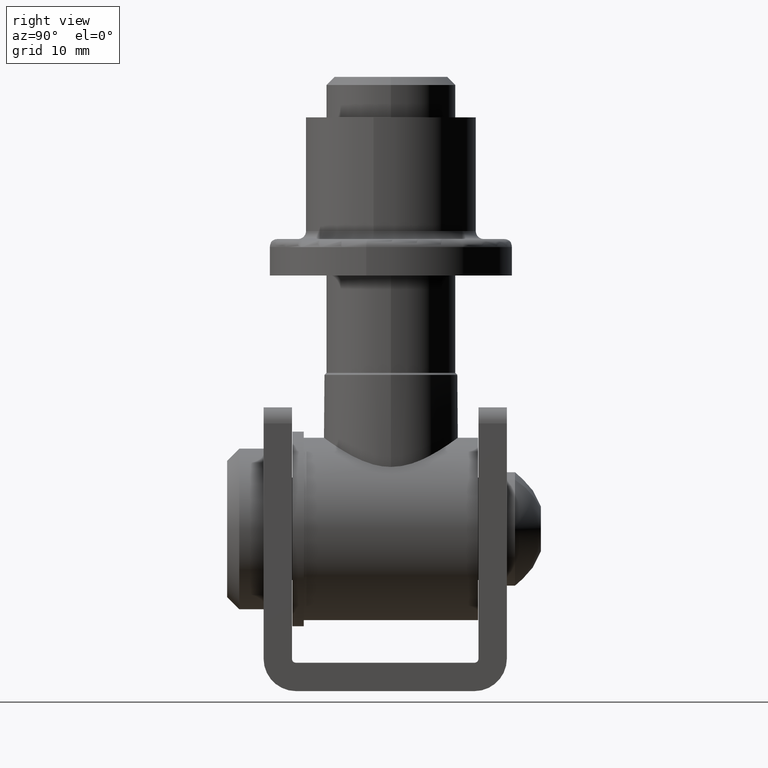
[diagram: clean part render]
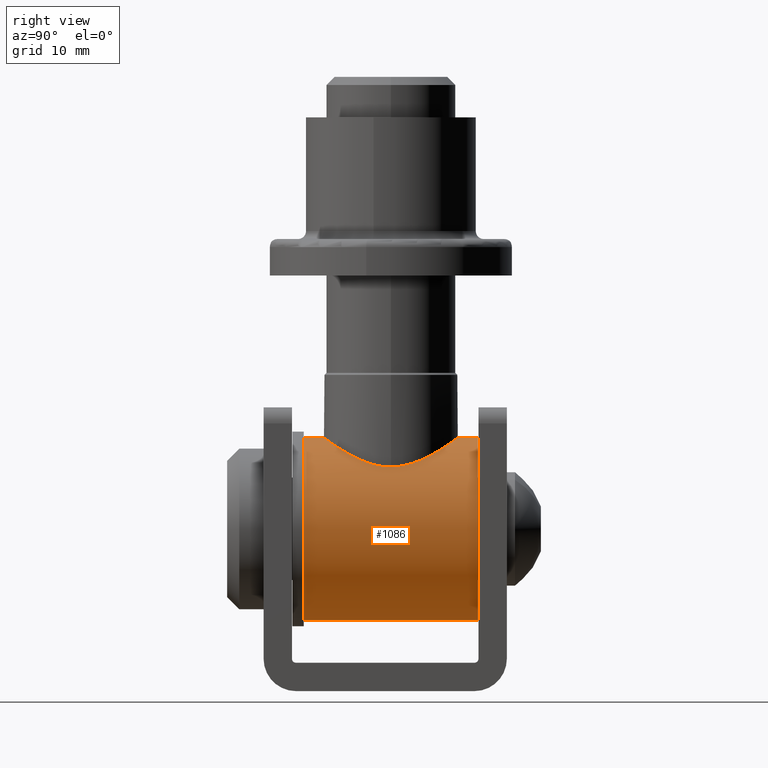
[diagram: same view with one face highlighted and labeled with its STEP entity id]
A machine part, right view. The second image highlights one B-rep face of the part: STEP entity #1086.
In plain terms, the highlighted cylindrical surface (partial cylindrical patch) has radius 11.25 mm, axis along (-0, -1, 0).
Its self-contained STEP definition (entity closure, byte-faithful):
#284 = CARTESIAN_POINT ( 'NONE',  ( -8.022782222583298761, -1.942731531581483928, -7.886949322906615656 ) ) ;
#341 = CARTESIAN_POINT ( 'NONE',  ( -3.502034089542544137, -7.474824470591601155, -10.69425772172868783 ) ) ;
#355 = CARTESIAN_POINT ( 'NONE',  ( -6.989858689683800641, 4.389943447779678820, -8.816894904360482954 ) ) ;
#377 = AXIS2_PLACEMENT_3D ( 'NONE', #7384, #11378, #3316 ) ;
#388 = CARTESIAN_POINT ( 'NONE',  ( -6.990264638839031264, -4.389334083277356413, -8.816582138848634287 ) ) ;
#1086 = ADVANCED_FACE ( 'NONE', ( #15471 ), #1588, .T. ) ;
#1415 = B_SPLINE_CURVE_WITH_KNOTS ( 'NONE', 3,
 ( #15018, #5624, #13778, #3068, #1700, #14951, #6960, #341, #11133, #16422, #16318, #8386, #7135, #4331, #7030, #388, #15183, #12484, #5726, #10958, #13830, #16376, #284, #5674, #9727, #11026, #1647, #11087 ),
 .UNSPECIFIED., .F., .F.,
 ( 4, 2, 2, 2, 2, 2, 2, 2, 2, 2, 2, 2, 2, 4 ),
 ( 0.02695384761757074407, 0.02779432558100355249, 0.02863480354443635745, 0.03031575947130197429, 0.03115623743473478618, 0.03199671539816759114, 0.03367767132503322186, 0.03535862725189884564, 0.03619910521533165754, 0.03703958317876446943, 0.03788006114219728132, 0.03872053910563010015, 0.03956101706906291204, 0.04040149503249572394 ),
 .UNSPECIFIED. ) ;
#1576 = CARTESIAN_POINT ( 'NONE',  ( -1.540023599285577063E-19, -8.250000000000000000, -11.25000000000000178 ) ) ;
#1588 = CYLINDRICAL_SURFACE ( 'NONE', #11175, 11.25000000000000178 ) ;
#1647 = CARTESIAN_POINT ( 'NONE',  ( -8.249999999999998224, -0.2850086951475768182, -7.648529270389176737 ) ) ;
#1656 = CARTESIAN_POINT ( 'NONE',  ( -7.491335845594983667, 3.465910782102133769, -8.394167489078405708 ) ) ;
#1700 = CARTESIAN_POINT ( 'NONE',  ( -1.401732938873593071, -8.134863435324785286, -11.16577246487722341 ) ) ;
#1721 = CARTESIAN_POINT ( 'NONE',  ( -0.2849386548582862333, 8.250000000000001776, -11.25000000000000533 ) ) ;
#1774 = CARTESIAN_POINT ( 'NONE',  ( -7.952774611668355753, 2.211144201917800256, -7.957935659869982636 ) ) ;
#1850 = LINE ( 'NONE', #11958, #3988 ) ;
#1880 = VERTEX_POINT ( 'NONE', #15591 ) ;
#2330 = ORIENTED_EDGE ( 'NONE', *, *, #14884, .F. ) ;
#2511 = CARTESIAN_POINT ( 'NONE',  ( 0.000000000000000000, -10.75000000000000000, -11.25000000000000178 ) ) ;
#2595 = EDGE_CURVE ( 'NONE', #1880, #6481, #7877, .T. ) ;
#2857 = AXIS2_PLACEMENT_3D ( 'NONE', #13768, #11077, #12639 ) ;
#3068 = CARTESIAN_POINT ( 'NONE',  ( -1.120444333229717149, -8.178401898778496104, -11.19758347525674047 ) ) ;
#3139 = CARTESIAN_POINT ( 'NONE',  ( -7.376938942889664119, 3.703024824820997818, -8.495302384604856982 ) ) ;
#3198 = CARTESIAN_POINT ( 'NONE',  ( -4.881390014206548500, 6.656135856349841617, -10.13862555105185059 ) ) ;
#3254 = CARTESIAN_POINT ( 'NONE',  ( -2.224392558510477791, 7.949270344565413815, -11.03120692382801415 ) ) ;
#3316 = DIRECTION ( 'NONE',  ( 0.000000000000000000, 0.000000000000000000, 1.000000000000000000 ) ) ;
#3327 = VECTOR ( 'NONE', #4265, 1000.000000000000000 ) ;
#3988 = VECTOR ( 'NONE', #5395, 1000.000000000000000 ) ;
#4265 = DIRECTION ( 'NONE',  ( -0.000000000000000000, -1.000000000000000000, -0.000000000000000000 ) ) ;
#4331 = CARTESIAN_POINT ( 'NONE',  ( -6.229006785122526146, -5.434171698818159868, -9.377855897108494432 ) ) ;
#4414 = EDGE_CURVE ( 'NONE', #8893, #13097, #15935, .T. ) ;
#4449 = CARTESIAN_POINT ( 'NONE',  ( -8.250000000000000000, 0.5703377690857592830, -7.648529270389175849 ) ) ;
#4474 = CIRCLE ( 'NONE', #377, 11.25000000000000178 ) ;
#4570 = CARTESIAN_POINT ( 'NONE',  ( -3.762828816614288474, 7.362130314261635888, -10.61496605038918162 ) ) ;
#4616 = CARTESIAN_POINT ( 'NONE',  ( -1.134711885318071545, 8.176505769903817722, -11.19619790823287175 ) ) ;
#4978 = VERTEX_POINT ( 'NONE', #2511 ) ;
#5303 = LINE ( 'NONE', #9925, #15179 ) ;
#5395 = DIRECTION ( 'NONE',  ( -0.000000000000000000, -1.000000000000000000, -0.000000000000000000 ) ) ;
#5527 = CARTESIAN_POINT ( 'NONE',  ( 1.377727649040772586E-15, 10.75000000000000000, 11.25000000000000178 ) ) ;
#5624 = CARTESIAN_POINT ( 'NONE',  ( -0.2804996491668463321, -8.250000000000001776, -11.25000000000000178 ) ) ;
#5674 = CARTESIAN_POINT ( 'NONE',  ( -8.135031357766843385, -1.400180417999666194, -7.771117617257244703 ) ) ;
#5726 = CARTESIAN_POINT ( 'NONE',  ( -7.491005665396754054, -3.466611630382876008, -8.394461206379931539 ) ) ;
#5900 = CARTESIAN_POINT ( 'NONE',  ( -2.751198573364721067, 7.782655567045216216, -10.91175306083233387 ) ) ;
#6041 = ORIENTED_EDGE ( 'NONE', *, *, #16463, .F. ) ;
#6481 = VERTEX_POINT ( 'NONE', #5527 ) ;
#6745 = EDGE_CURVE ( 'NONE', #4978, #9041, #4474, .T. ) ;
#6916 = CARTESIAN_POINT ( 'NONE',  ( -1.578549087989804672E-16, 8.250000000000001776, -11.25000000000000178 ) ) ;
#6960 = CARTESIAN_POINT ( 'NONE',  ( -2.748210586029055325, -7.798000583273257291, -10.92178568307971176 ) ) ;
#7030 = CARTESIAN_POINT ( 'NONE',  ( -6.555034102168317389, -5.036292444041044369, -9.150284653915569777 ) ) ;
#7135 = CARTESIAN_POINT ( 'NONE',  ( -5.500475561341771069, -6.170536133953085312, -9.822905647267360152 ) ) ;
#7148 = CARTESIAN_POINT ( 'NONE',  ( -8.191579617375850830, 1.126693944114465662, -7.712761601114794807 ) ) ;
#7210 = CARTESIAN_POINT ( 'NONE',  ( -6.555669538428259280, 5.035336017460132929, -9.149794419989325078 ) ) ;
#7329 = CARTESIAN_POINT ( 'NONE',  ( -1.578549087989804672E-16, 8.250000000000001776, -11.25000000000000178 ) ) ;
#7384 = CARTESIAN_POINT ( 'NONE',  ( 0.000000000000000000, -10.75000000000000000, 0.000000000000000000 ) ) ;
#7877 = CIRCLE ( 'NONE', #2857, 11.25000000000000178 ) ;
#8183 = CARTESIAN_POINT ( 'NONE',  ( 0.000000000000000000, 10.75000000000000000, 0.000000000000000000 ) ) ;
#8386 = CARTESIAN_POINT ( 'NONE',  ( -5.095010759508726395, -6.510131598628597693, -10.04152658519757679 ) ) ;
#8449 = CARTESIAN_POINT ( 'NONE',  ( -5.092162485574159625, 6.496257299313408673, -10.03416660009486883 ) ) ;
#8619 = CARTESIAN_POINT ( 'NONE',  ( -1.956558626995568151, 8.019464973293612076, -11.08198053699707586 ) ) ;
#8668 = ORIENTED_EDGE ( 'NONE', *, *, #10352, .T. ) ;
#8852 = ORIENTED_EDGE ( 'NONE', *, *, #2595, .F. ) ;
#8893 = VERTEX_POINT ( 'NONE', #13807 ) ;
#9041 = VERTEX_POINT ( 'NONE', #10402 ) ;
#9227 = LINE ( 'NONE', #10854, #3327 ) ;
#9515 = EDGE_LOOP ( 'NONE', ( #6041, #8852, #8668, #10241, #2330, #15932, #17470 ) ) ;
#9727 = CARTESIAN_POINT ( 'NONE',  ( -8.177669024658275276, -1.125441115796155911, -7.725930039888944556 ) ) ;
#9746 = CARTESIAN_POINT ( 'NONE',  ( -7.698220410651556378, 2.978263388287861080, -8.204849973962042853 ) ) ;
#9805 = CARTESIAN_POINT ( 'NONE',  ( -0.5709410212496239811, 8.235098300458043141, -11.23905890247286621 ) ) ;
#9910 = CARTESIAN_POINT ( 'NONE',  ( -8.022719277239252378, 1.943117177756297442, -7.887015749602205972 ) ) ;
#9925 = CARTESIAN_POINT ( 'NONE',  ( 0.000000000000000000, 10.75000000000000000, -11.25000000000000178 ) ) ;
#10241 = ORIENTED_EDGE ( 'NONE', *, *, #4414, .F. ) ;
#10352 = EDGE_CURVE ( 'NONE', #1880, #13097, #1850, .T. ) ;
#10402 = CARTESIAN_POINT ( 'NONE',  ( 1.377727649040772586E-15, -10.75000000000000000, 11.25000000000000178 ) ) ;
#10854 = CARTESIAN_POINT ( 'NONE',  ( 1.377727649040772586E-15, 10.75000000000000000, 11.25000000000000178 ) ) ;
#10958 = CARTESIAN_POINT ( 'NONE',  ( -7.697815663143271259, -2.979294562673898916, -8.205228750052617315 ) ) ;
#11026 = CARTESIAN_POINT ( 'NONE',  ( -8.235154101387522019, -0.5684411212959594728, -7.664626708751967499 ) ) ;
#11077 = DIRECTION ( 'NONE',  ( 0.000000000000000000, 1.000000000000000000, 0.000000000000000000 ) ) ;
#11087 = CARTESIAN_POINT ( 'NONE',  ( -8.250000000000000000, 3.479430233540607893E-18, -7.648529270389179402 ) ) ;
#11133 = CARTESIAN_POINT ( 'NONE',  ( -3.746665451203797570, -7.355050489224104204, -10.61074624883409889 ) ) ;
#11175 = AXIS2_PLACEMENT_3D ( 'NONE', #8183, #17440, #16219 ) ;
#11208 = CARTESIAN_POINT ( 'NONE',  ( -7.790714803142225975, 2.727736343888838011, -8.116657369060716221 ) ) ;
#11267 = CARTESIAN_POINT ( 'NONE',  ( -8.250000000000000000, 3.479430233540607893E-18, -7.648529270389179402 ) ) ;
#11324 = CARTESIAN_POINT ( 'NONE',  ( -6.230580557722497304, 5.432218888466250561, -9.376745911682130341 ) ) ;
#11378 = DIRECTION ( 'NONE',  ( 0.000000000000000000, 1.000000000000000000, 0.000000000000000000 ) ) ;
#11958 = CARTESIAN_POINT ( 'NONE',  ( 0.000000000000000000, 10.75000000000000000, -11.25000000000000178 ) ) ;
#12484 = CARTESIAN_POINT ( 'NONE',  ( -7.376762962557818604, -3.703328580412054816, -8.495447085809079368 ) ) ;
#12519 = DIRECTION ( 'NONE',  ( -0.000000000000000000, -1.000000000000000000, -0.000000000000000000 ) ) ;
#12563 = CARTESIAN_POINT ( 'NONE',  ( -7.126196265604561653, 4.165206814126550583, -8.706705321594306213 ) ) ;
#12610 = CARTESIAN_POINT ( 'NONE',  ( -4.228471544159292606, 7.103589264319895236, -10.43605838145717613 ) ) ;
#12616 = EDGE_CURVE ( 'NONE', #13878, #4978, #5303, .T. ) ;
#12639 = DIRECTION ( 'NONE',  ( 0.000000000000000000, 0.000000000000000000, 1.000000000000000000 ) ) ;
#12673 = CARTESIAN_POINT ( 'NONE',  ( -1.411717324901290871, 8.133080247564722143, -11.16447349756477969 ) ) ;
#13097 = VERTEX_POINT ( 'NONE', #6916 ) ;
#13768 = CARTESIAN_POINT ( 'NONE',  ( 0.000000000000000000, 10.75000000000000000, 0.000000000000000000 ) ) ;
#13778 = CARTESIAN_POINT ( 'NONE',  ( -0.5606892502460470995, -8.235731946006305648, -11.23952395583851960 ) ) ;
#13807 = CARTESIAN_POINT ( 'NONE',  ( -8.250000000000000000, 3.479430233540607893E-18, -7.648529270389179402 ) ) ;
#13830 = CARTESIAN_POINT ( 'NONE',  ( -7.790390738260828840, -2.728701877206066939, -8.116971118420689635 ) ) ;
#13878 = VERTEX_POINT ( 'NONE', #1576 ) ;
#13897 = CARTESIAN_POINT ( 'NONE',  ( -5.686096376743429381, 5.983098447209857618, -9.709585855689956801 ) ) ;
#14884 = EDGE_CURVE ( 'NONE', #13878, #8893, #1415, .T. ) ;
#14951 = CARTESIAN_POINT ( 'NONE',  ( -2.224001892570912187, -7.964279562839972293, -11.04190361573471790 ) ) ;
#15018 = CARTESIAN_POINT ( 'NONE',  ( -1.540023599285577063E-19, -8.250000000000000000, -11.25000000000000178 ) ) ;
#15179 = VECTOR ( 'NONE', #12519, 1000.000000000000000 ) ;
#15183 = CARTESIAN_POINT ( 'NONE',  ( -7.126667085754776032, -4.164359570099722241, -8.706312034516473730 ) ) ;
#15362 = CARTESIAN_POINT ( 'NONE',  ( -3.011541869963730189, 7.685535207926876389, -10.84258210962545022 ) ) ;
#15471 = FACE_OUTER_BOUND ( 'NONE', #9515, .T. ) ;
#15591 = CARTESIAN_POINT ( 'NONE',  ( 0.000000000000000000, 10.75000000000000000, -11.25000000000000178 ) ) ;
#15932 = ORIENTED_EDGE ( 'NONE', *, *, #12616, .T. ) ;
#15935 = B_SPLINE_CURVE_WITH_KNOTS ( 'NONE', 3,
 ( #11267, #4449, #7148, #9910, #1774, #11208, #9746, #1656, #3139, #12563, #355, #7210, #11324, #13897, #16507, #8449, #3198, #12610, #4570, #15362, #5900, #3254, #8619, #12673, #4616, #9805, #1721, #7329 ),
 .UNSPECIFIED., .F., .F.,
 ( 4, 2, 2, 2, 2, 2, 2, 2, 2, 2, 2, 2, 2, 4 ),
 ( 0.04040149503249572394, 0.04208339574216284767, 0.04292434609699641301, 0.04376529645182997141, 0.04460624680666353675, 0.04544719716149710209, 0.04712909787116421889, 0.04797004822599778423, 0.04881099858083134263, 0.05049289929049846637, 0.05133384964533202477, 0.05217480000016558317, 0.05301575035499914851, 0.05385670070983270691 ),
 .UNSPECIFIED. ) ;
#16219 = DIRECTION ( 'NONE',  ( 0.000000000000000000, 0.000000000000000000, -1.000000000000000000 ) ) ;
#16318 = CARTESIAN_POINT ( 'NONE',  ( -4.441820994834261072, -6.957178901508326518, -10.33875954600136460 ) ) ;
#16376 = CARTESIAN_POINT ( 'NONE',  ( -7.952731109409057808, -2.211350196347325880, -7.957981898288848832 ) ) ;
#16422 = CARTESIAN_POINT ( 'NONE',  ( -4.215943879567154440, -7.096484122903405911, -10.43318049133298686 ) ) ;
#16463 = EDGE_CURVE ( 'NONE', #6481, #9041, #9227, .T. ) ;
#16507 = CARTESIAN_POINT ( 'NONE',  ( -5.495045321633410751, 6.159217043713131723, -9.819322535243612649 ) ) ;
#17440 = DIRECTION ( 'NONE',  ( -0.000000000000000000, -1.000000000000000000, -0.000000000000000000 ) ) ;
#17470 = ORIENTED_EDGE ( 'NONE', *, *, #6745, .T. ) ;